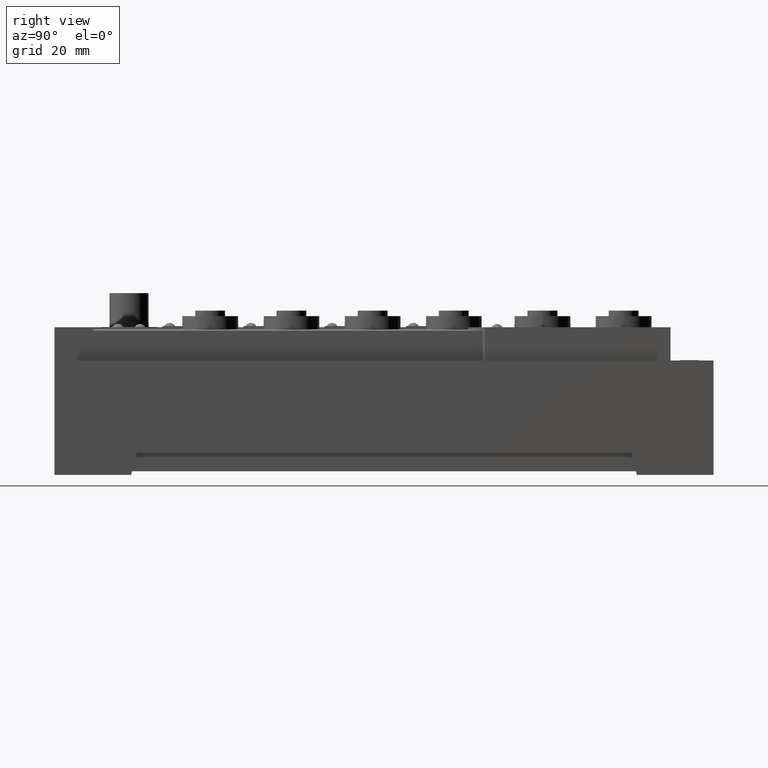
[diagram: clean part render]
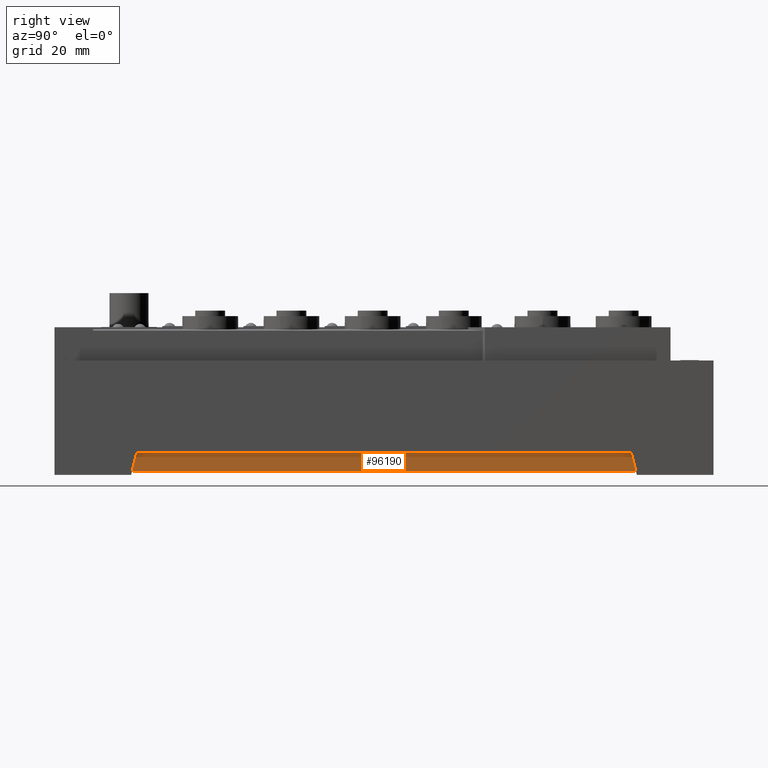
[diagram: same view with one face highlighted and labeled with its STEP entity id]
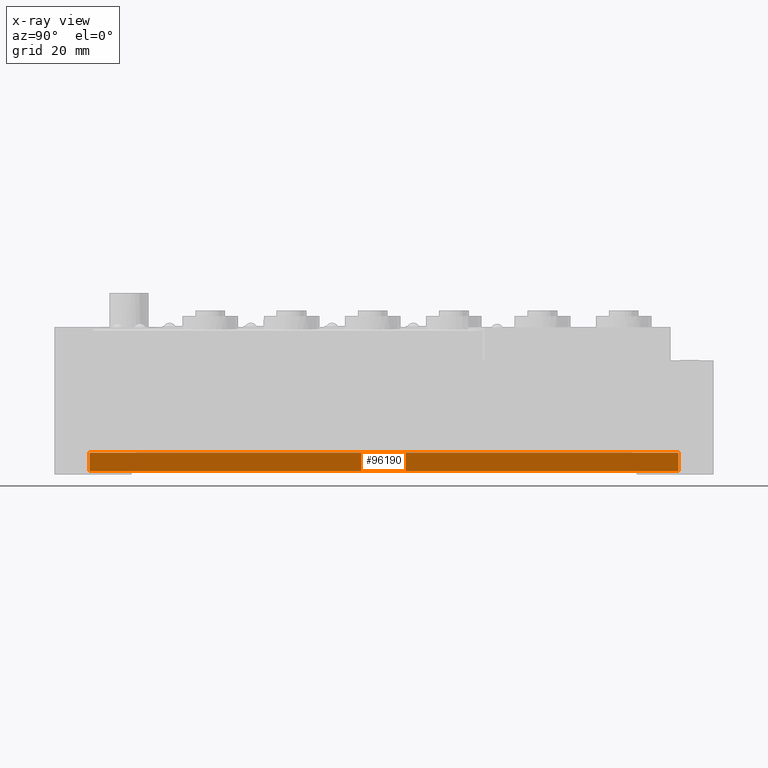
[diagram: x-ray of the same camera — body ghosted, the highlighted face saturated]
A machine part, right view. The second image highlights one B-rep face of the part: STEP entity #96190.
The next image is the same camera in x-ray: the body ghosted, the highlighted face saturated — about 0% of this face is hidden behind the body in this view.
In plain terms, the highlighted planar face has unit normal (1, 0, 0).
Its self-contained STEP definition (entity closure, byte-faithful):
#23430=CARTESIAN_POINT('',(-12.200000000018,0.,-33.9999999999976));
#23440=DIRECTION('',(0.,-1.,0.));
#23450=VECTOR('',#23440,1.);
#23460=LINE('',#23430,#23450);
#23470=CARTESIAN_POINT('',(-12.200000000018,-36.9250000000052,
-33.9999999999976));
#23480=VERTEX_POINT('',#23470);
#23490=CARTESIAN_POINT('',(-12.200000000018,-196.424999999996,
-33.9999999999976));
#23500=VERTEX_POINT('',#23490);
#23510=EDGE_CURVE('',#23480,#23500,#23460,.T.);
#33050=CARTESIAN_POINT('',(-12.200000000018,-36.9250000000052,0.));
#33060=DIRECTION('',(0.,0.,-1.));
#33070=VECTOR('',#33060,1.);
#33080=LINE('',#33050,#33070);
#33090=CARTESIAN_POINT('',(-12.200000000018,-36.9250000000052,
-38.9999999999925));
#33100=VERTEX_POINT('',#33090);
#33110=EDGE_CURVE('',#23480,#33100,#33080,.T.);
#76520=CARTESIAN_POINT('',(-12.200000000018,-196.424999999996,
-38.9999999999925));
#76530=VERTEX_POINT('',#76520);
#76560=CARTESIAN_POINT('',(-12.200000000018,0.,-38.9999999999925));
#76570=DIRECTION('',(0.,1.,0.));
#76580=VECTOR('',#76570,1.);
#76590=LINE('',#76560,#76580);
#76600=EDGE_CURVE('',#76530,#33100,#76590,.T.);
#79410=CARTESIAN_POINT('',(-12.200000000018,-196.424999999996,0.));
#79420=DIRECTION('',(0.,0.,-1.));
#79430=VECTOR('',#79420,1.);
#79440=LINE('',#79410,#79430);
#79450=EDGE_CURVE('',#23500,#76530,#79440,.T.);
#96080=CARTESIAN_POINT('',(-12.200000000018,-36.9250000000052,
-38.9999999999925));
#96090=DIRECTION('',(1.,0.,0.));
#96100=DIRECTION('',(0.,1.,0.));
#96110=AXIS2_PLACEMENT_3D('',#96080,#96090,#96100);
#96120=PLANE('',#96110);
#96130=ORIENTED_EDGE('',*,*,#79450,.T.);
#96140=ORIENTED_EDGE('',*,*,#23510,.T.);
#96150=ORIENTED_EDGE('',*,*,#33110,.F.);
#96160=ORIENTED_EDGE('',*,*,#76600,.T.);
#96170=EDGE_LOOP('',(#96160,#96150,#96140,#96130));
#96180=FACE_OUTER_BOUND('',#96170,.T.);
#96190=ADVANCED_FACE('',(#96180),#96120,.T.);